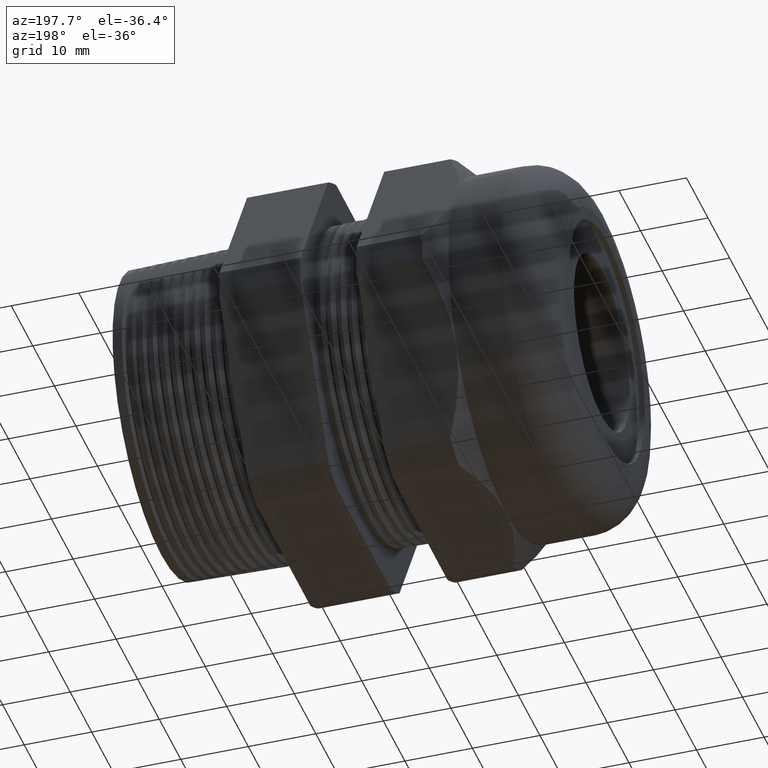
[diagram: clean part render]
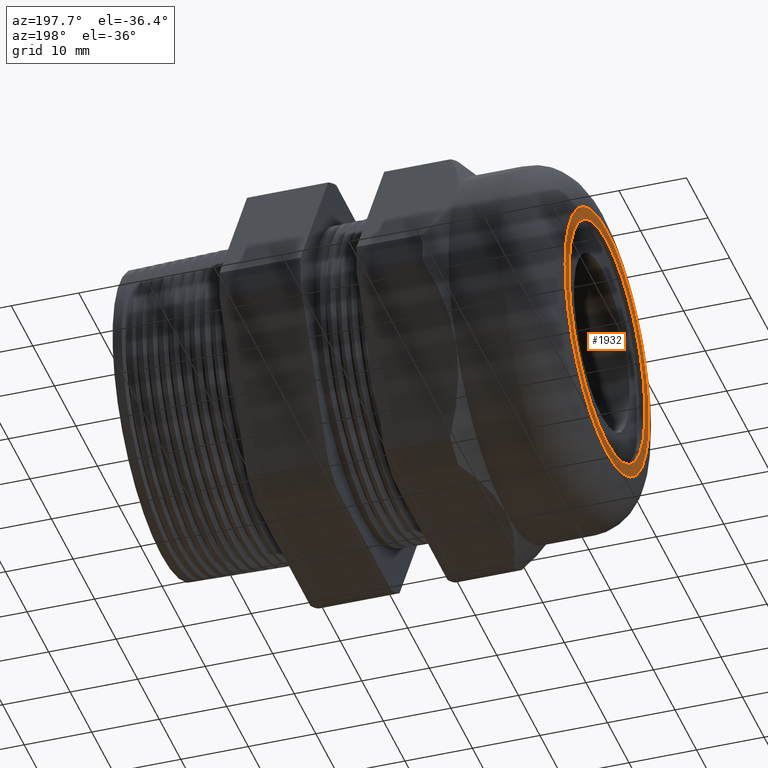
[diagram: same view with one face highlighted and labeled with its STEP entity id]
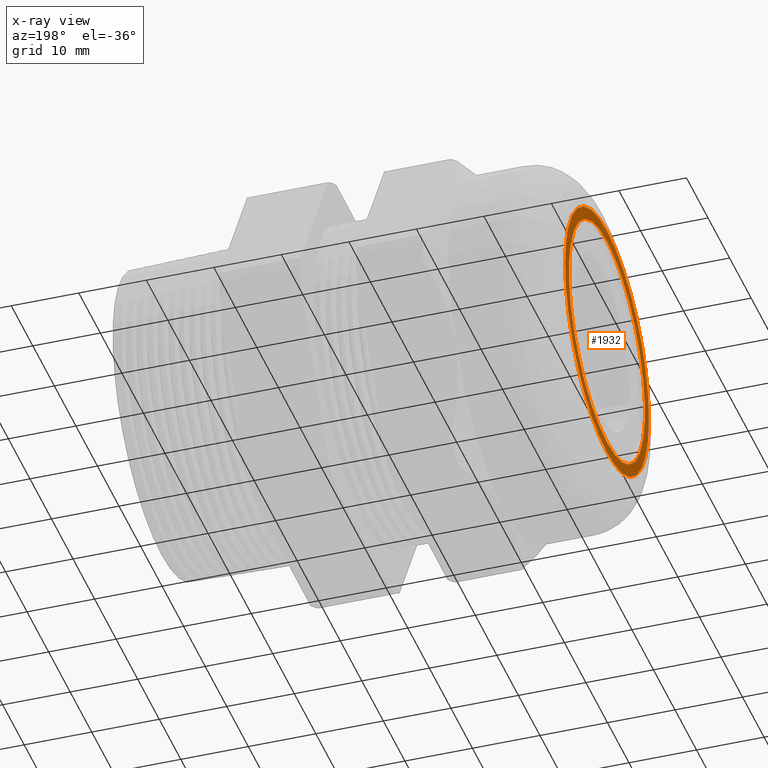
[diagram: x-ray of the same camera — body ghosted, the highlighted face saturated]
A machine part, auxiliary view. The second image highlights one B-rep face of the part: STEP entity #1932.
The next image is the same camera in x-ray: the body ghosted, the highlighted face saturated — about 0% of this face is hidden behind the body in this view.
In plain terms, the highlighted planar face has unit normal (-1, 0, 0).
Its self-contained STEP definition (entity closure, byte-faithful):
#827 = DIRECTION ( 'NONE',  ( 0.0000000000000000000, 0.0000000000000000000, -1.000000000000000000 ) ) ;
#828 = DIRECTION ( 'NONE',  ( 1.000000000000000000, 0.0000000000000000000, 0.0000000000000000000 ) ) ;
#829 = CARTESIAN_POINT ( 'NONE',  ( -2.200000000000000200, 0.0000000000000000000, 0.0000000000000000000 ) ) ;
#830 = AXIS2_PLACEMENT_3D ( 'NONE', #829, #828, #827 ) ;
#831 = CIRCLE ( 'NONE', #830, 0.6937500000000000900 ) ;
#865 = CARTESIAN_POINT ( 'NONE',  ( -2.200000000000000200, 8.495987169084764700E-017, 0.6937500000000000900 ) ) ;
#926 = CARTESIAN_POINT ( 'NONE',  ( -2.200000000000000200, 0.0000000000000000000, -0.6937500000000000900 ) ) ;
#1157 = EDGE_CURVE ( 'NONE', #1158, #1187, #2681, .T. ) ;
#1158 = VERTEX_POINT ( 'NONE', #2676 ) ;
#1187 = VERTEX_POINT ( 'NONE', #2743 ) ;
#1932 = ADVANCED_FACE ( 'NONE', ( #4242, #4241 ), #4247, .T. ) ;
#1933 = EDGE_LOOP ( 'NONE', ( #1934, #1935 ) ) ;
#1934 = ORIENTED_EDGE ( 'NONE', *, *, #1157, .T. ) ;
#1935 = ORIENTED_EDGE ( 'NONE', *, *, #1936, .T. ) ;
#1936 = EDGE_CURVE ( 'NONE', #1187, #1158, #4303, .T. ) ;
#1937 = EDGE_LOOP ( 'NONE', ( #1938, #1940 ) ) ;
#1938 = ORIENTED_EDGE ( 'NONE', *, *, #1939, .T. ) ;
#1939 = EDGE_CURVE ( 'NONE', #2571, #2570, #4298, .T. ) ;
#1940 = ORIENTED_EDGE ( 'NONE', *, *, #2507, .T. ) ;
#2507 = EDGE_CURVE ( 'NONE', #2570, #2571, #831, .T. ) ;
#2570 = VERTEX_POINT ( 'NONE', #865 ) ;
#2571 = VERTEX_POINT ( 'NONE', #926 ) ;
#2676 = CARTESIAN_POINT ( 'NONE',  ( -2.200000000000000200, 0.0000000000000000000, 0.7649999999999999000 ) ) ;
#2677 = DIRECTION ( 'NONE',  ( 0.0000000000000000000, 0.0000000000000000000, 1.000000000000000000 ) ) ;
#2678 = DIRECTION ( 'NONE',  ( -1.000000000000000000, 0.0000000000000000000, 0.0000000000000000000 ) ) ;
#2679 = CARTESIAN_POINT ( 'NONE',  ( -2.200000000000000200, 0.0000000000000000000, 0.0000000000000000000 ) ) ;
#2680 = AXIS2_PLACEMENT_3D ( 'NONE', #2679, #2678, #2677 ) ;
#2681 = CIRCLE ( 'NONE', #2680, 0.7649999999999999000 ) ;
#2743 = CARTESIAN_POINT ( 'NONE',  ( -2.200000000000000200, 1.108305353228354700E-016, -0.7649999999999999000 ) ) ;
#4237 = DIRECTION ( 'NONE',  ( 0.0000000000000000000, 0.0000000000000000000, 1.000000000000000000 ) ) ;
#4238 = DIRECTION ( 'NONE',  ( -1.000000000000000000, 0.0000000000000000000, 0.0000000000000000000 ) ) ;
#4239 = CARTESIAN_POINT ( 'NONE',  ( -2.200000000000000200, 1.044999999999999700, 0.0000000000000000000 ) ) ;
#4240 = AXIS2_PLACEMENT_3D ( 'NONE', #4239, #4238, #4237 ) ;
#4241 = FACE_BOUND ( 'NONE', #1937, .T. ) ;
#4242 = FACE_OUTER_BOUND ( 'NONE', #1933, .T. ) ;
#4247 = PLANE ( 'NONE',  #4240 ) ;
#4294 = DIRECTION ( 'NONE',  ( 0.0000000000000000000, 0.0000000000000000000, -1.000000000000000000 ) ) ;
#4295 = DIRECTION ( 'NONE',  ( 1.000000000000000000, 0.0000000000000000000, 0.0000000000000000000 ) ) ;
#4296 = CARTESIAN_POINT ( 'NONE',  ( -2.200000000000000200, 0.0000000000000000000, 0.0000000000000000000 ) ) ;
#4297 = AXIS2_PLACEMENT_3D ( 'NONE', #4296, #4295, #4294 ) ;
#4298 = CIRCLE ( 'NONE', #4297, 0.6937500000000000900 ) ;
#4299 = DIRECTION ( 'NONE',  ( 0.0000000000000000000, 0.0000000000000000000, 1.000000000000000000 ) ) ;
#4300 = DIRECTION ( 'NONE',  ( -1.000000000000000000, 0.0000000000000000000, 0.0000000000000000000 ) ) ;
#4301 = CARTESIAN_POINT ( 'NONE',  ( -2.200000000000000200, 0.0000000000000000000, 0.0000000000000000000 ) ) ;
#4302 = AXIS2_PLACEMENT_3D ( 'NONE', #4301, #4300, #4299 ) ;
#4303 = CIRCLE ( 'NONE', #4302, 0.7649999999999999000 ) ;